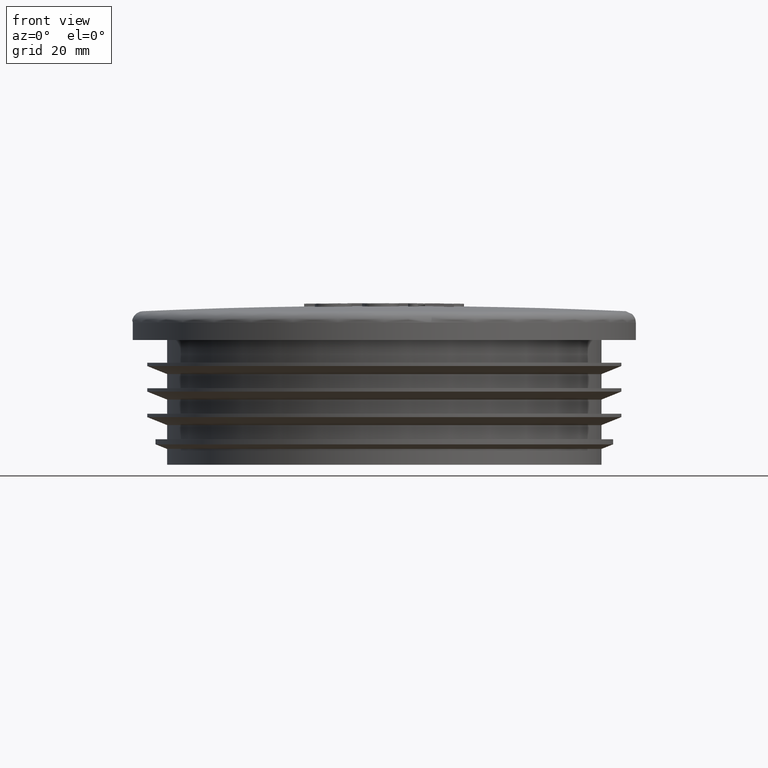
[diagram: clean part render]
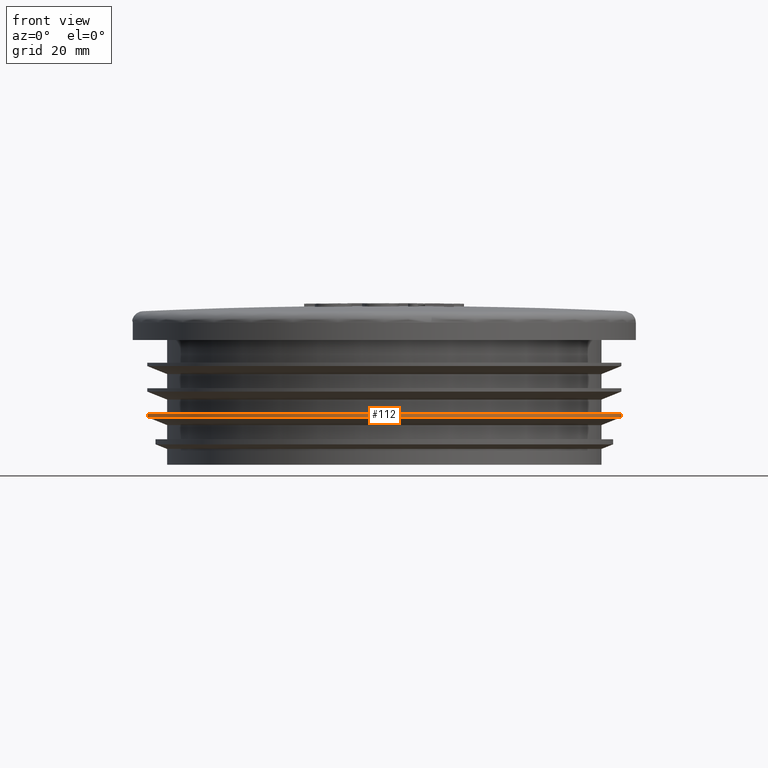
[diagram: same view with one face highlighted and labeled with its STEP entity id]
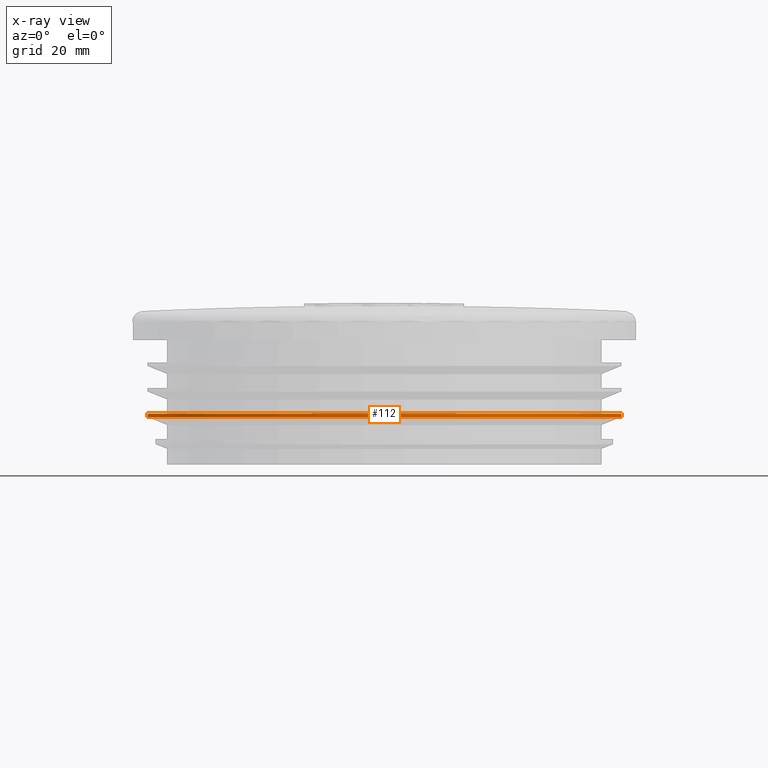
[diagram: x-ray of the same camera — body ghosted, the highlighted face saturated]
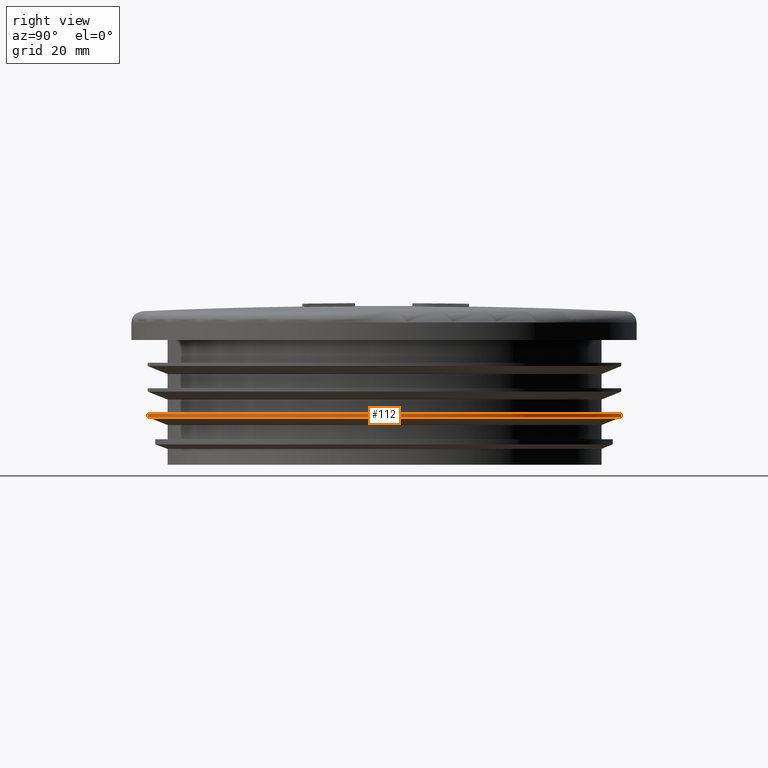
[diagram: same view with one face highlighted and labeled with its STEP entity id]
A machine part, front view. The second image highlights one B-rep face of the part: STEP entity #112.
The next image is the same camera in x-ray: the body ghosted, the highlighted face saturated — about 0% of this face is hidden behind the body in this view.
A second angle (right view) of the same face is appended — the face is thin or edge-on in the first view.
In plain terms, the highlighted cylindrical surface (bore or boss wall) has radius 41.85 mm, axis along (0, 0, 1).
Its self-contained STEP definition (entity closure, byte-faithful):
#112 = ADVANCED_FACE( '', ( #263, #264 ), #265, .T. );
#263 = FACE_OUTER_BOUND( '', #667, .T. );
#264 = FACE_OUTER_BOUND( '', #668, .T. );
#265 = CYLINDRICAL_SURFACE( '', #669, 41.8500000000000 );
#667 = EDGE_LOOP( '', ( #1233 ) );
#668 = EDGE_LOOP( '', ( #1234 ) );
#669 = AXIS2_PLACEMENT_3D( '', #1235, #1236, #1237 );
#1233 = ORIENTED_EDGE( '', *, *, #1619, .F. );
#1234 = ORIENTED_EDGE( '', *, *, #1618, .T. );
#1235 = CARTESIAN_POINT( '', ( 0.000000000000000, 0.000000000000000, 22.0000000000000 ) );
#1236 = DIRECTION( '', ( 0.000000000000000, 6.12303176911189E-017, 1.00000000000000 ) );
#1237 = DIRECTION( '', ( 0.000000000000000, 1.00000000000000, -6.12303176911189E-017 ) );
#1618 = EDGE_CURVE( '', #1851, #1851, #1852, .T. );
#1619 = EDGE_CURVE( '', #1853, #1853, #1854, .T. );
#1851 = VERTEX_POINT( '', #3155 );
#1852 = CIRCLE( '', #3156, 41.8500000000000 );
#1853 = VERTEX_POINT( '', #3157 );
#1854 = CIRCLE( '', #3158, 41.8500000000000 );
#3155 = CARTESIAN_POINT( '', ( 0.000000000000000, 41.8500000000000, 9.00000000000000 ) );
#3156 = AXIS2_PLACEMENT_3D( '', #3506, #3507, #3508 );
#3157 = CARTESIAN_POINT( '', ( 0.000000000000000, 41.8500000000000, 8.41409179042305 ) );
#3158 = AXIS2_PLACEMENT_3D( '', #3509, #3510, #3511 );
#3506 = CARTESIAN_POINT( '', ( 0.000000000000000, -7.95994129984545E-016, 9.00000000000000 ) );
#3507 = DIRECTION( '', ( 0.000000000000000, -6.12303176911189E-017, -1.00000000000000 ) );
#3508 = DIRECTION( '', ( 0.000000000000000, 1.00000000000000, -6.12303176911189E-017 ) );
#3509 = CARTESIAN_POINT( '', ( 0.000000000000000, -8.31869475794776E-016, 8.41409179042305 ) );
#3510 = DIRECTION( '', ( 0.000000000000000, -6.12303176911189E-017, -1.00000000000000 ) );
#3511 = DIRECTION( '', ( 0.000000000000000, 1.00000000000000, -6.12303176911189E-017 ) );